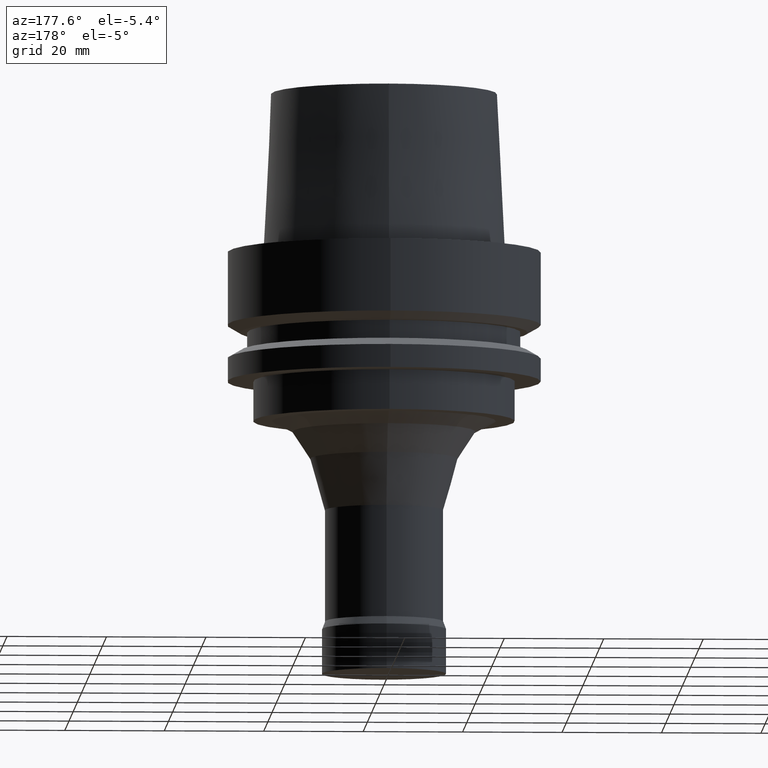
[diagram: clean part render]
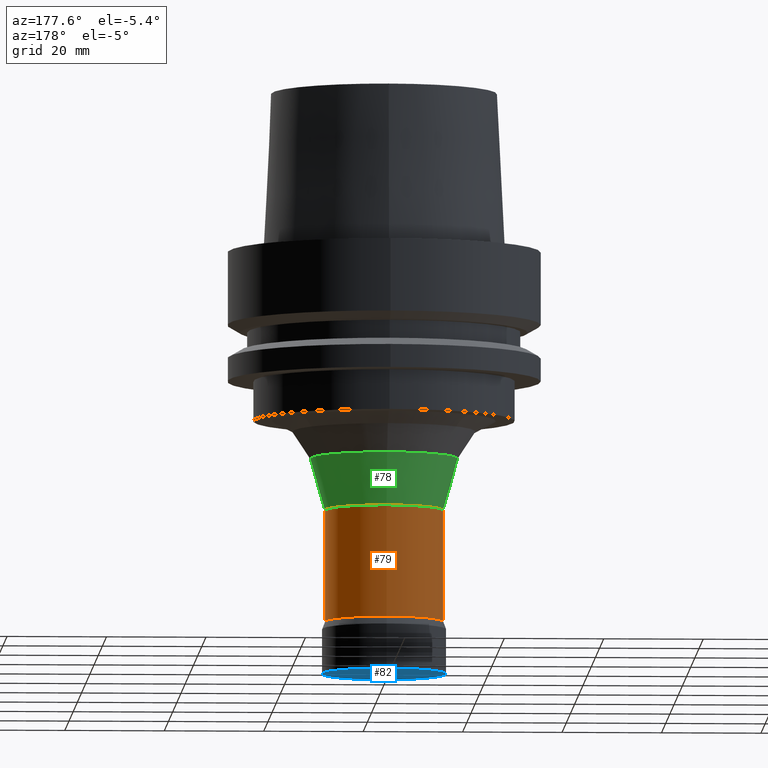
[diagram: same view with three faces highlighted in distinct colors, each labeled with its STEP entity id]
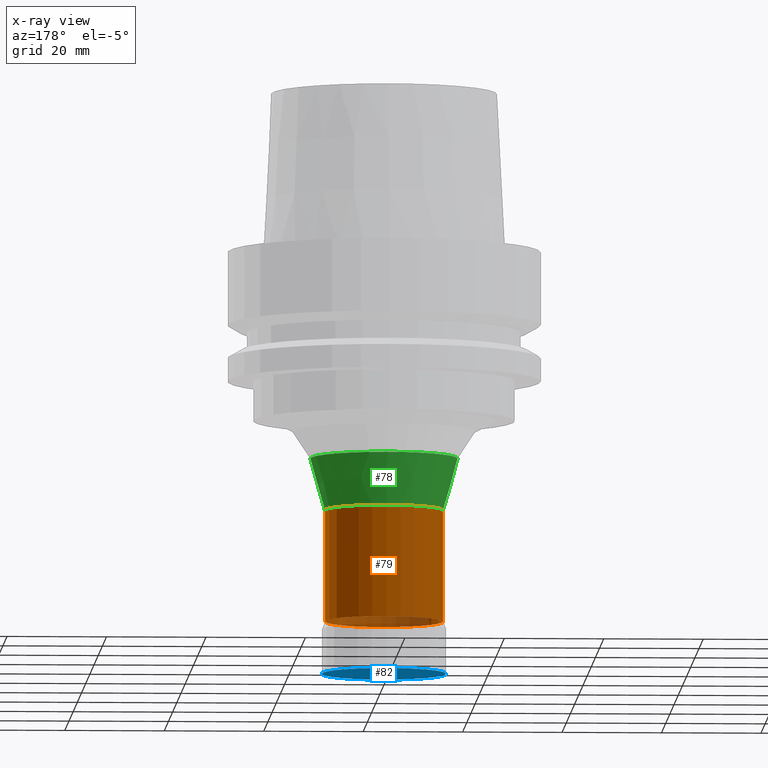
[diagram: x-ray of the same camera — body ghosted, the three highlighted faces saturated]
A machine part, auxiliary view with three faces highlighted in distinct colors.
The next image is the same camera in x-ray (body ghosted, the three faces saturated) — at least one of them is partly hidden behind the body in this view.
Their STEP definitions:

[orange] entity #79 — the highlighted cylindrical surface (bore or boss wall) has radius 11.9 mm, axis along (-0, -0, 1).
#79=ADVANCED_FACE('',(#108,#109),#110,.T.);
#108=FACE_BOUND('',#166,.T.);
#109=FACE_BOUND('',#167,.T.);
#110=CYLINDRICAL_SURFACE('',#168,11.9);
#166=EDGE_LOOP('',(#232));
#167=EDGE_LOOP('',(#233));
#168=AXIS2_PLACEMENT_3D('',#234,#235,#236);
#232=ORIENTED_EDGE('',*,*,#315,.F.);
#233=ORIENTED_EDGE('',*,*,#314,.T.);
#234=CARTESIAN_POINT('',(3.8714299521825E-015,7.74285990436501E-015,-63.2252491882222));
#235=DIRECTION('',(-6.12323399573677E-017,-1.22464679914735E-016,1.0));
#236=DIRECTION('',(-1.23259516440783E-032,1.0,1.22464679914735E-016));
#314=EDGE_CURVE('',#337,#337,#338,.T.);
#315=EDGE_CURVE('',#339,#339,#340,.T.);
#337=VERTEX_POINT('',#375);
#338=CIRCLE('',#376,11.9);
#339=VERTEX_POINT('',#377);
#340=CIRCLE('',#378,11.9);
#375=CARTESIAN_POINT('',(3.18408130159883E-015,11.9,-51.9999938564444));
#376=AXIS2_PLACEMENT_3D('',#417,#418,#419);
#377=CARTESIAN_POINT('',(4.55877860276618E-015,11.9,-74.45050452));
#378=AXIS2_PLACEMENT_3D('',#420,#421,#422);
#417=CARTESIAN_POINT('',(3.18408130159883E-015,6.36816260319766E-015,-51.9999938564444));
#418=DIRECTION('',(6.12323399573677E-017,1.22464679914735E-016,-1.0));
#419=DIRECTION('',(-1.23259516440783E-032,1.0,1.22464679914735E-016));
#420=CARTESIAN_POINT('',(4.55877860276618E-015,9.11755720553235E-015,-74.45050452));
#421=DIRECTION('',(6.12323399573677E-017,1.22464679914735E-016,-1.0));
#422=DIRECTION('',(-1.23259516440783E-032,1.0,1.22464679914735E-016));

[blue] entity #82 — the highlighted planar face has unit normal (0, 0, -1).
#82=ADVANCED_FACE('',(#117),#118,.T.);
#117=FACE_OUTER_BOUND('',#175,.T.);
#118=PLANE('',#176);
#175=EDGE_LOOP('',(#247));
#176=AXIS2_PLACEMENT_3D('',#248,#249,#250);
#247=ORIENTED_EDGE('',*,*,#317,.T.);
#248=CARTESIAN_POINT('',(5.20474889637625E-015,6.25000000000001,-85.0));
#249=DIRECTION('',(6.12323399573677E-017,1.22464679914735E-016,-1.0));
#250=DIRECTION('',(-1.23259516440783E-032,1.0,1.22464679914735E-016));
#317=EDGE_CURVE('',#343,#343,#344,.T.);
#343=VERTEX_POINT('',#381);
#344=CIRCLE('',#382,12.5);
#381=CARTESIAN_POINT('',(5.20474889637625E-015,12.5,-85.0));
#382=AXIS2_PLACEMENT_3D('',#426,#427,#428);
#426=CARTESIAN_POINT('',(5.20474889637625E-015,1.04094977927525E-014,-85.0));
#427=DIRECTION('',(6.12323399573677E-017,1.22464679914735E-016,-1.0));
#428=DIRECTION('',(-1.23259516440783E-032,1.0,1.22464679914735E-016));

[green] entity #78 — the highlighted conical surface has half-angle 15.706 deg.
#78=ADVANCED_FACE('',(#105,#106),#107,.T.);
#105=FACE_BOUND('',#163,.T.);
#106=FACE_BOUND('',#164,.T.);
#107=CONICAL_SURFACE('',#165,13.3655484663789,0.274118247621102);
#163=EDGE_LOOP('',(#227));
#164=EDGE_LOOP('',(#228));
#165=AXIS2_PLACEMENT_3D('',#229,#230,#231);
#227=ORIENTED_EDGE('',*,*,#314,.F.);
#228=ORIENTED_EDGE('',*,*,#313,.T.);
#229=CARTESIAN_POINT('',(2.86494919071929E-015,5.72989838143858E-015,-46.7881709683801));
#230=DIRECTION('',(-6.12323399573677E-017,-1.22464679914735E-016,1.0));
#231=DIRECTION('',(-1.23259516440783E-032,1.0,1.22464679914735E-016));
#313=EDGE_CURVE('',#335,#335,#336,.T.);
#314=EDGE_CURVE('',#337,#337,#338,.T.);
#335=VERTEX_POINT('',#373);
#336=CIRCLE('',#374,14.8310969327579);
#337=VERTEX_POINT('',#375);
#338=CIRCLE('',#376,11.9);
#373=CARTESIAN_POINT('',(2.54581707983975E-015,14.8310969327579,-41.5763480803158));
#374=AXIS2_PLACEMENT_3D('',#414,#415,#416);
#375=CARTESIAN_POINT('',(3.18408130159883E-015,11.9,-51.9999938564444));
#376=AXIS2_PLACEMENT_3D('',#417,#418,#419);
#414=CARTESIAN_POINT('',(2.54581707983975E-015,5.0916341596795E-015,-41.5763480803158));
#415=DIRECTION('',(6.12323399573677E-017,1.22464679914735E-016,-1.0));
#416=DIRECTION('',(-1.23259516440783E-032,1.0,1.22464679914735E-016));
#417=CARTESIAN_POINT('',(3.18408130159883E-015,6.36816260319766E-015,-51.9999938564444));
#418=DIRECTION('',(6.12323399573677E-017,1.22464679914735E-016,-1.0));
#419=DIRECTION('',(-1.23259516440783E-032,1.0,1.22464679914735E-016));